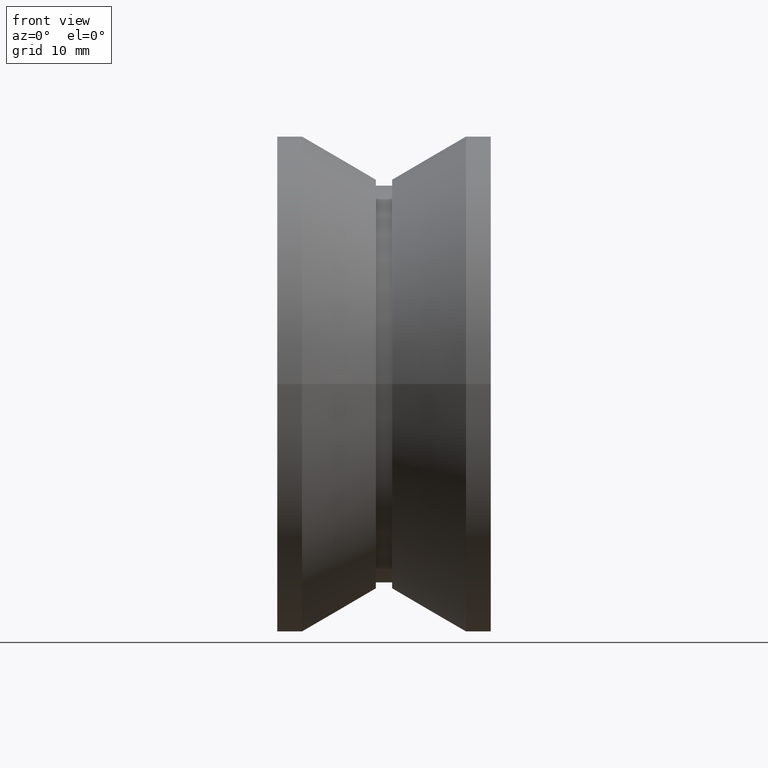
[diagram: clean part render]
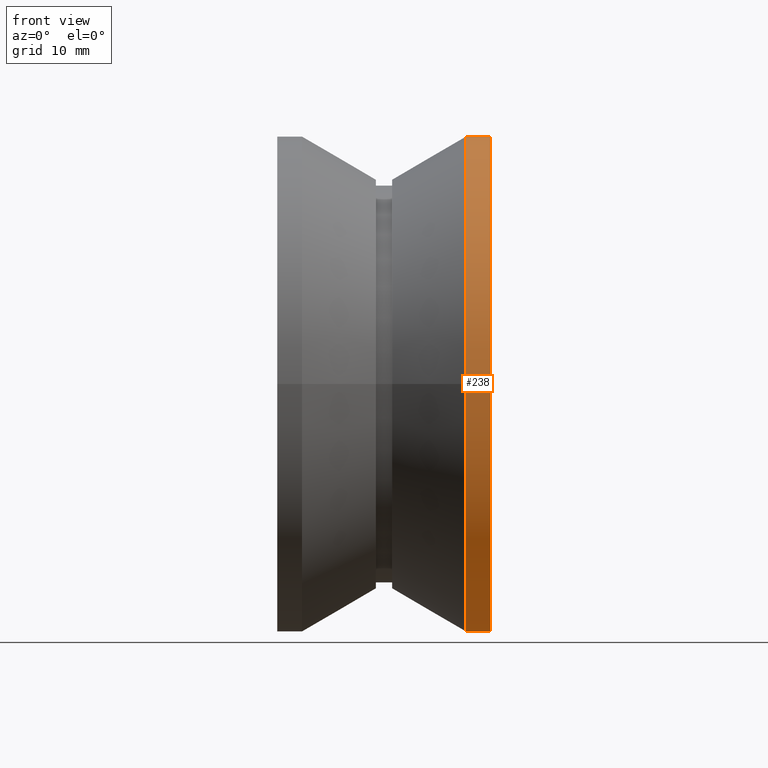
[diagram: same view with one face highlighted and labeled with its STEP entity id]
A machine part, front view. The second image highlights one B-rep face of the part: STEP entity #238.
In plain terms, the highlighted cylindrical surface (bore or boss wall) has radius 29 mm, axis along (1, 0, 0).
Its self-contained STEP definition (entity closure, byte-faithful):
#25=LINE('',#433,#35);
#35=VECTOR('',#362,29.);
#43=CYLINDRICAL_SURFACE('',#291,29.);
#66=FACE_OUTER_BOUND('',#89,.T.);
#89=EDGE_LOOP('',(#197,#198,#199,#200));
#110=CIRCLE('',#290,29.);
#111=CIRCLE('',#292,29.);
#128=VERTEX_POINT('',#427);
#129=VERTEX_POINT('',#431);
#151=EDGE_CURVE('',#128,#128,#110,.T.);
#153=EDGE_CURVE('',#129,#129,#111,.T.);
#154=EDGE_CURVE('',#129,#128,#25,.T.);
#197=ORIENTED_EDGE('',*,*,#153,.F.);
#198=ORIENTED_EDGE('',*,*,#154,.T.);
#199=ORIENTED_EDGE('',*,*,#151,.T.);
#200=ORIENTED_EDGE('',*,*,#154,.F.);
#238=ADVANCED_FACE('',(#66),#43,.T.);
#290=AXIS2_PLACEMENT_3D('',#428,#355,#356);
#291=AXIS2_PLACEMENT_3D('',#430,#358,#359);
#292=AXIS2_PLACEMENT_3D('',#432,#360,#361);
#355=DIRECTION('center_axis',(1.,0.,0.));
#356=DIRECTION('ref_axis',(0.,1.,0.));
#358=DIRECTION('center_axis',(1.,0.,0.));
#359=DIRECTION('ref_axis',(0.,1.,0.));
#360=DIRECTION('center_axis',(1.,0.,0.));
#361=DIRECTION('ref_axis',(0.,1.,0.));
#362=DIRECTION('',(-1.,0.,0.));
#427=CARTESIAN_POINT('',(9.60769515458674,-29.,-3.55147571752732E-15));
#428=CARTESIAN_POINT('Origin',(9.60769515458674,0.,0.));
#430=CARTESIAN_POINT('Origin',(11.0538475772934,0.,0.));
#431=CARTESIAN_POINT('',(12.5,-29.,-3.55147571752732E-15));
#432=CARTESIAN_POINT('Origin',(12.5,0.,0.));
#433=CARTESIAN_POINT('',(11.0538475772934,-29.,-3.55147571752732E-15));